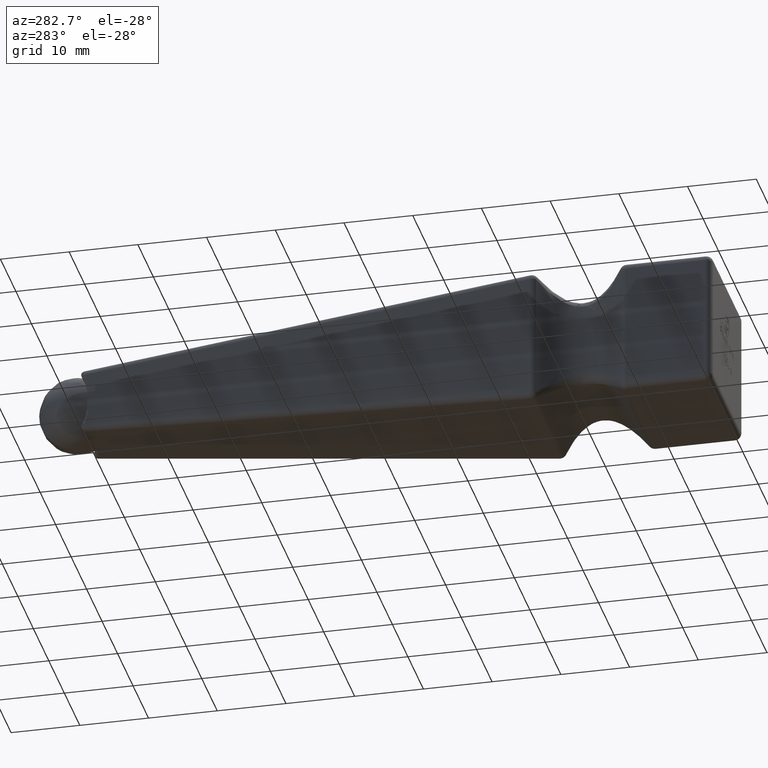
[diagram: clean part render]
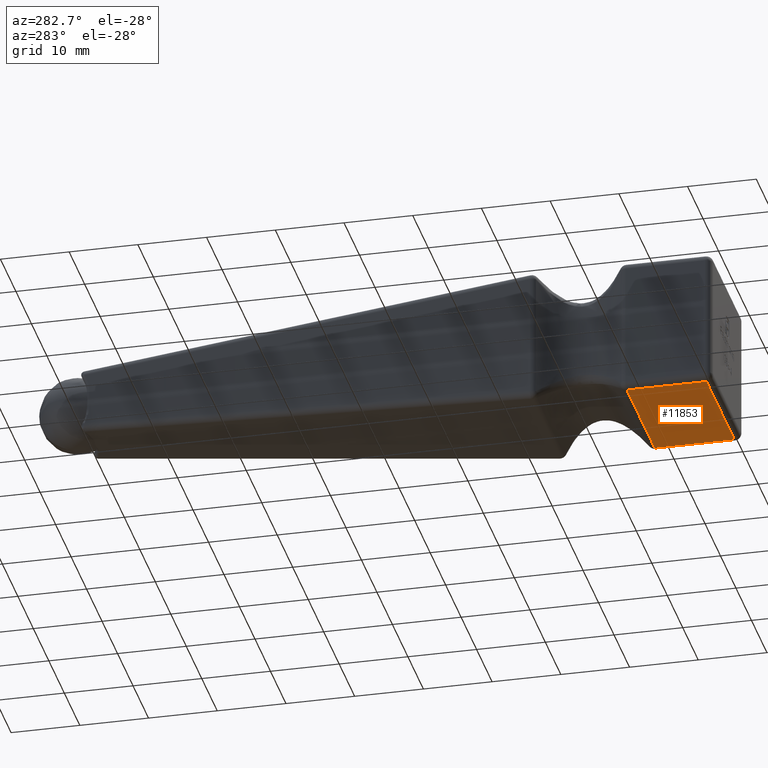
[diagram: same view with one face highlighted and labeled with its STEP entity id]
A machine part, auxiliary view. The second image highlights one B-rep face of the part: STEP entity #11853.
In plain terms, the highlighted planar face has unit normal (0, 0, 1).
Its self-contained STEP definition (entity closure, byte-faithful):
#618 = CARTESIAN_POINT ( 'NONE',  ( -9.000000000000003553, -37.42934587424612403, -10.00000000000000000 ) ) ;
#1123 = ORIENTED_EDGE ( 'NONE', *, *, #10006, .T. ) ;
#2223 = CARTESIAN_POINT ( 'NONE',  ( 8.999999999999998224, -49.00000000000000000, -10.00000000000000000 ) ) ;
#3031 = DIRECTION ( 'NONE',  ( 1.000000000000000000, 0.000000000000000000, -0.000000000000000000 ) ) ;
#3072 = CARTESIAN_POINT ( 'NONE',  ( 8.999999999999998224, -37.00000000000000711, -10.00000000000000000 ) ) ;
#3728 = VERTEX_POINT ( 'NONE', #2223 ) ;
#3978 = ORIENTED_EDGE ( 'NONE', *, *, #4669, .T. ) ;
#4404 = DIRECTION ( 'NONE',  ( 0.000000000000000000, -1.000000000000000000, 0.000000000000000000 ) ) ;
#4669 = EDGE_CURVE ( 'NONE', #11251, #3728, #12376, .T. ) ;
#4910 = CARTESIAN_POINT ( 'NONE',  ( -10.00000000000000178, -49.00000000000000000, -10.00000000000000000 ) ) ;
#4961 = DIRECTION ( 'NONE',  ( -1.000000000000000000, 0.000000000000000000, 0.000000000000000000 ) ) ;
#5383 = PLANE ( 'NONE',  #8600 ) ;
#6386 = CARTESIAN_POINT ( 'NONE',  ( 8.999999999999998224, -37.42934587424612403, -10.00000000000000000 ) ) ;
#6727 = DIRECTION ( 'NONE',  ( 0.000000000000000000, 0.000000000000000000, 1.000000000000000000 ) ) ;
#6759 = VERTEX_POINT ( 'NONE', #14575 ) ;
#7895 = CARTESIAN_POINT ( 'NONE',  ( -10.00000000000000178, -37.00000000000000711, -10.00000000000000000 ) ) ;
#8035 = B_SPLINE_CURVE_WITH_KNOTS ( 'NONE', 3,
 ( #618, #12595, #10193, #12648 ),
 .UNSPECIFIED., .F., .F.,
 ( 4, 4 ),
 ( 0.000000000000000000, 0.01800000000000000211 ),
 .UNSPECIFIED. ) ;
#8600 = AXIS2_PLACEMENT_3D ( 'NONE', #7895, #6727, #3031 ) ;
#9861 = VERTEX_POINT ( 'NONE', #11065 ) ;
#10006 = EDGE_CURVE ( 'NONE', #3728, #6759, #15502, .T. ) ;
#10099 = ORIENTED_EDGE ( 'NONE', *, *, #12021, .T. ) ;
#10193 = CARTESIAN_POINT ( 'NONE',  ( 2.999999999999999112, -37.42934587424612403, -10.00000000000000000 ) ) ;
#10683 = DIRECTION ( 'NONE',  ( -0.000000000000000000, 1.000000000000000000, -0.000000000000000000 ) ) ;
#11065 = CARTESIAN_POINT ( 'NONE',  ( -9.000000000000003553, -37.42934587424612403, -10.00000000000000000 ) ) ;
#11153 = FACE_OUTER_BOUND ( 'NONE', #12965, .T. ) ;
#11251 = VERTEX_POINT ( 'NONE', #6386 ) ;
#11699 = VECTOR ( 'NONE', #10683, 1000.000000000000000 ) ;
#11790 = VECTOR ( 'NONE', #4404, 1000.000000000000000 ) ;
#11853 = ADVANCED_FACE ( 'NONE', ( #11153 ), #5383, .F. ) ;
#12021 = EDGE_CURVE ( 'NONE', #6759, #9861, #13776, .T. ) ;
#12376 = LINE ( 'NONE', #3072, #11790 ) ;
#12595 = CARTESIAN_POINT ( 'NONE',  ( -3.000000000000002665, -37.42934587424612403, -10.00000000000000000 ) ) ;
#12648 = CARTESIAN_POINT ( 'NONE',  ( 8.999999999999998224, -37.42934587424612403, -10.00000000000000000 ) ) ;
#12965 = EDGE_LOOP ( 'NONE', ( #3978, #1123, #10099, #13872 ) ) ;
#13776 = LINE ( 'NONE', #15443, #11699 ) ;
#13872 = ORIENTED_EDGE ( 'NONE', *, *, #14997, .T. ) ;
#14575 = CARTESIAN_POINT ( 'NONE',  ( -9.000000000000003553, -49.00000000000000000, -10.00000000000000000 ) ) ;
#14997 = EDGE_CURVE ( 'NONE', #9861, #11251, #8035, .T. ) ;
#15315 = VECTOR ( 'NONE', #4961, 1000.000000000000000 ) ;
#15443 = CARTESIAN_POINT ( 'NONE',  ( -9.000000000000003553, -37.00000000000000711, -10.00000000000000000 ) ) ;
#15502 = LINE ( 'NONE', #4910, #15315 ) ;